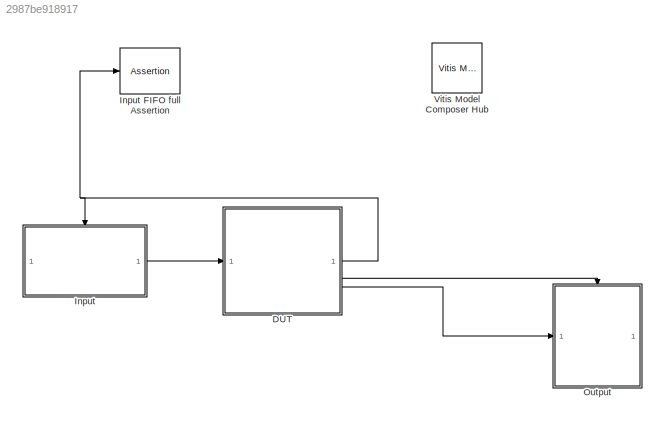
MODEL slx_2987be918917
KIND model
CONFIG AbsTol = auto
CONFIG EnableMultiTasking = off
CONFIG FixedStep = auto
CONFIG InitFcn = load stream_in;
CONFIG MaxStep = auto
CONFIG MinStep = auto
CONFIG PreLoadFcn = video_filename = 'vipmen.avi';\n\nv = VideoReader(video_filename);\nframe_height = v.Height;\nframe_width = v.Width;\nsave video_handle v\n\nstream_in = zeros(ceil(v.FrameRate*v.Duration*v.Height*v.Width),1);\n\ni = 1;\nwhile hasFrame(v)\n    frame = rgb2gray(readFrame(v));\n    a = reshape(frame',[],1);\n    stream_in(i:i+length(a)-1) = a;\n    i = i + length(a);\nend\n\nsave stream_in stream_in
CONFIG RelTol = 1e-3
CONFIG SampleTimeConstraint = Unconstrained
CONFIG SolverName = FixedStepDiscrete
CONFIG StartTime = 0.0
CONFIG StopFcn = save stream_out stream_out;
CONFIG StopTime = length(stream_in)
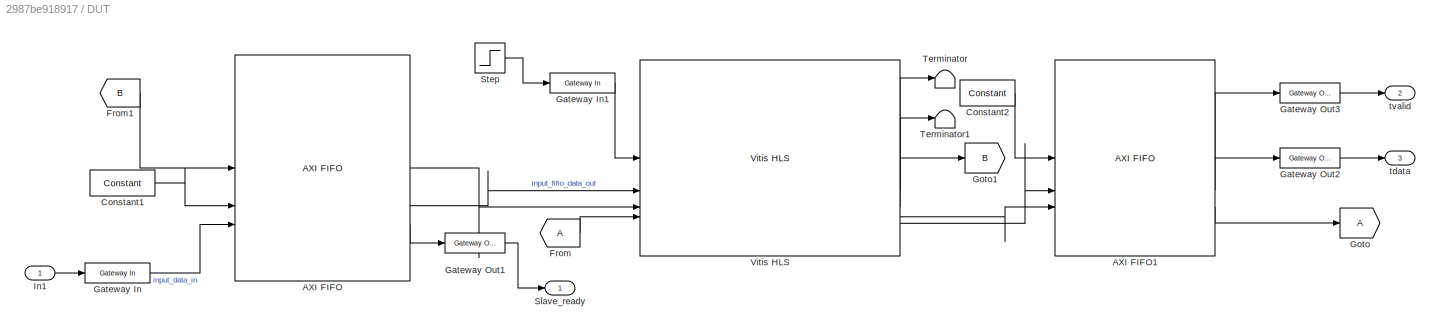
BLOCK [SubSystem] DUT
BLOCK [Reference] DUT/AXI FIFO  REF=hdlBasic/AXI FIFO
  SourceBlock = hdlBasic/AXI FIFO
  SourceType = AXI FIFO Block Block
BLOCK [Reference] DUT/AXI FIFO1  REF=hdlBasic/AXI FIFO
  SourceBlock = hdlBasic/AXI FIFO
  SourceType = AXI FIFO Block Block
BLOCK [Reference] DUT/Constant1  REF=hdlBasic/Constant
  SourceBlock = hdlBasic/Constant
  SourceType = Constant Block Block
BLOCK [Reference] DUT/Constant2  REF=hdlBasic/Constant
  SourceBlock = hdlBasic/Constant
  SourceType = Constant Block Block
BLOCK [From] DUT/From
BLOCK [From] DUT/From1
  GotoTag = B
BLOCK [Reference] DUT/Gateway In  REF=hdlBasic/Gateway In
  SourceBlock = hdlBasic/Gateway In
  SourceType = Gateway In Block
BLOCK [Reference] DUT/Gateway In1  REF=hdlBasic/Gateway In
  SourceBlock = hdlBasic/Gateway In
  SourceType = Gateway In Block
BLOCK [Reference] DUT/Gateway Out1  REF=hdlBasic/Gateway Out
  SourceBlock = hdlBasic/Gateway Out
  SourceType = Gateway Out Block
BLOCK [Reference] DUT/Gateway Out2  REF=hdlBasic/Gateway Out
  SourceBlock = hdlBasic/Gateway Out
  SourceType = Gateway Out Block
BLOCK [Reference] DUT/Gateway Out3  REF=hdlBasic/Gateway Out
  SourceBlock = hdlBasic/Gateway Out
  SourceType = Gateway Out Block
BLOCK [Goto] DUT/Goto
BLOCK [Goto] DUT/Goto1
  GotoTag = B
BLOCK [Inport] DUT/In1
BLOCK [Outport] DUT/Slave_ready 
BLOCK [Step] DUT/Step
  SampleTime = 1
  Time = 2
BLOCK [Terminator] DUT/Terminator
BLOCK [Terminator] DUT/Terminator1
BLOCK [Reference] DUT/Vitis HLS  REF=hdlBasic/Vitis HLS
  SourceBlock = hdlBasic/Vitis HLS
  SourceType = Xilinx High Level Synthesis Block
BLOCK [Outport] DUT/tdata
  Port = 3
BLOCK [Outport] DUT/tvalid
  Port = 2
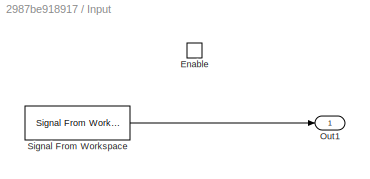
BLOCK [SubSystem] Input
BLOCK [Assertion] Input FIFO full Assertion
  AssertionFailFcn = warning('Input buffer full.')
  Enabled = off
  StopWhenAssertionFail = off
BLOCK [EnablePort] Input/Enable
BLOCK [Outport] Input/Out1
BLOCK [Reference] Input/Signal From Workspace  REF=dspsrcs4/Signal From
Workspace
  SourceBlock = dspsrcs4/Signal From\nWorkspace
  SourceType = Signal From Workspace
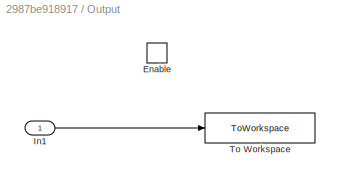
BLOCK [SubSystem] Output
BLOCK [EnablePort] Output/Enable
BLOCK [Inport] Output/In1
BLOCK [ToWorkspace] Output/To Workspace
  FixptAsFi = on
  MaxDataPoints = inf
  SampleTime = -1
  VariableName = stream_out
BLOCK [Reference] Vitis Model Composer Hub  REF=vmcUtilities/Vitis Model Composer Hub
  SourceBlock = vmcUtilities/Vitis Model Composer Hub
  SourceType = VMC Hub
  Tag = genX
  UserDataPersistent = on
LINE DUT/AXI FIFO1:1 -> DUT/Gateway Out3:1
LINE DUT/AXI FIFO1:2 -> DUT/Gateway Out2:1
LINE DUT/AXI FIFO1:3 -> DUT/Goto:1
LINE DUT/AXI FIFO:1 -> DUT/Vitis HLS:3
LINE DUT/AXI FIFO:2 -> DUT/Vitis HLS:2
LINE DUT/AXI FIFO:3 -> DUT/Gateway Out1:1
LINE DUT/Constant1:1 -> DUT/AXI FIFO:2
LINE DUT/Constant2:1 -> DUT/AXI FIFO1:1
LINE DUT/From1:1 -> DUT/AXI FIFO:1
LINE DUT/From:1 -> DUT/Vitis HLS:4
LINE DUT/Gateway In1:1 -> DUT/Vitis HLS:1
LINE DUT/Gateway In:1 -> DUT/AXI FIFO:3
LINE DUT/Gateway Out1:1 -> DUT/Slave_ready :1
LINE DUT/Gateway Out2:1 -> DUT/tdata:1
LINE DUT/Gateway Out3:1 -> DUT/tvalid:1
LINE DUT/In1:1 -> DUT/Gateway In:1
LINE DUT/Step:1 -> DUT/Gateway In1:1
LINE DUT/Vitis HLS:1 -> DUT/Terminator:1
LINE DUT/Vitis HLS:2 -> DUT/Terminator1:1
LINE DUT/Vitis HLS:3 -> DUT/Goto1:1
LINE DUT/Vitis HLS:4 -> DUT/AXI FIFO1:3
LINE DUT/Vitis HLS:5 -> DUT/AXI FIFO1:2
NET DUT:1 -> Input FIFO full Assertion:1, Input:enable
LINE DUT:2 -> Output:enable
LINE DUT:3 -> Output:1
LINE Input/Signal From Workspace:1 -> Input/Out1:1
LINE Input:1 -> DUT:1
LINE Output/In1:1 -> Output/To Workspace:1
note: NET lines group one-source signal fan-out (src -> all destinations, sorted); 1:1 wires keep LINE
